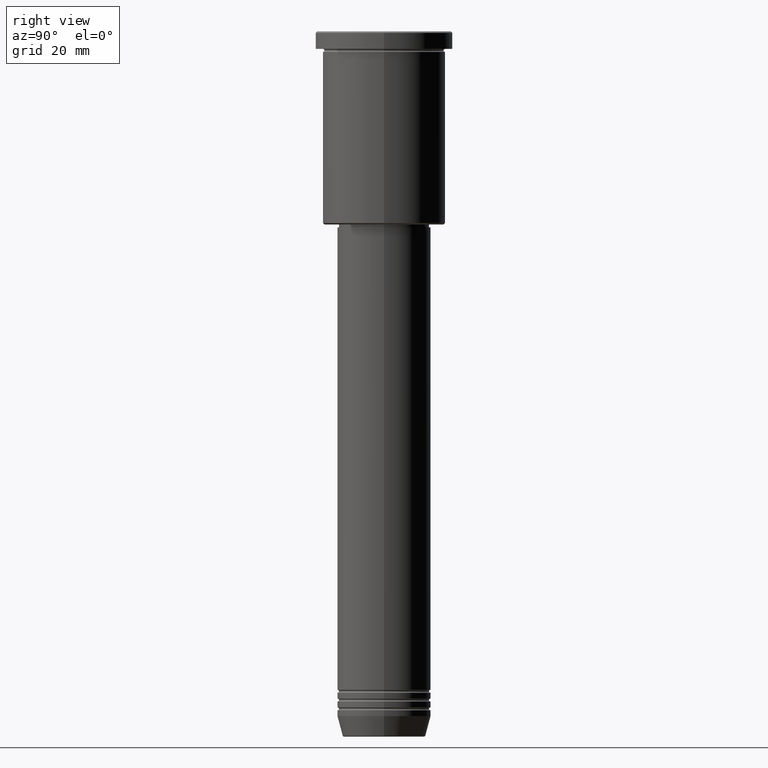
[diagram: clean part render]
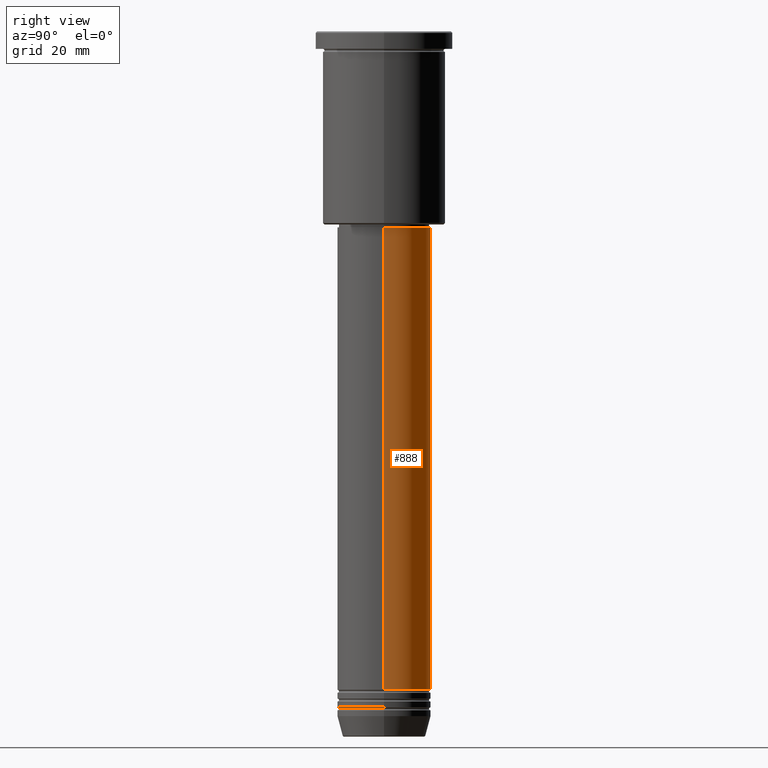
[diagram: same view with one face highlighted and labeled with its STEP entity id]
A machine part, right view. The second image highlights one B-rep face of the part: STEP entity #888.
In plain terms, the highlighted cylindrical surface (partial cylindrical patch) has radius 16 mm, axis along (-0, -0, 1).
Its self-contained STEP definition (entity closure, byte-faithful):
#3 = EDGE_CURVE ( 'NONE', #647, #993, #567, .T. ) ;
#12 = DIRECTION ( 'NONE',  ( -0.000000000000000000, -0.000000000000000000, 1.000000000000000000 ) ) ;
#17 = EDGE_CURVE ( 'NONE', #748, #993, #382, .T. ) ;
#32 = DIRECTION ( 'NONE',  ( 1.000000000000000000, 0.000000000000000000, 0.000000000000000000 ) ) ;
#38 = DIRECTION ( 'NONE',  ( -0.000000000000000000, -0.000000000000000000, 1.000000000000000000 ) ) ;
#58 = ORIENTED_EDGE ( 'NONE', *, *, #458, .F. ) ;
#67 = VECTOR ( 'NONE', #1146, 1000.000000000000000 ) ;
#95 = CARTESIAN_POINT ( 'NONE',  ( 0.000000000000000000, 0.000000000000000000, 0.000000000000000000 ) ) ;
#99 = FACE_OUTER_BOUND ( 'NONE', #1005, .T. ) ;
#201 = DIRECTION ( 'NONE',  ( -0.000000000000000000, -0.000000000000000000, 1.000000000000000000 ) ) ;
#228 = ORIENTED_EDGE ( 'NONE', *, *, #3, .T. ) ;
#230 = AXIS2_PLACEMENT_3D ( 'NONE', #932, #201, #32 ) ;
#279 = EDGE_CURVE ( 'NONE', #474, #647, #998, .T. ) ;
#296 = CARTESIAN_POINT ( 'NONE',  ( 16.00000000000000000, 0.000000000000000000, -67.00000000000000000 ) ) ;
#382 = CIRCLE ( 'NONE', #230, 16.00000000000000000 ) ;
#417 = CARTESIAN_POINT ( 'NONE',  ( -16.00000000000000000, 1.959434878635765131E-15, -67.00000000000000000 ) ) ;
#448 = DIRECTION ( 'NONE',  ( -0.000000000000000000, -0.000000000000000000, 1.000000000000000000 ) ) ;
#458 = EDGE_CURVE ( 'NONE', #474, #748, #1066, .T. ) ;
#473 = AXIS2_PLACEMENT_3D ( 'NONE', #540, #448, #813 ) ;
#474 = VERTEX_POINT ( 'NONE', #504 ) ;
#504 = CARTESIAN_POINT ( 'NONE',  ( 16.00000000000000000, 0.000000000000000000, -224.9999999999999716 ) ) ;
#529 = ORIENTED_EDGE ( 'NONE', *, *, #17, .F. ) ;
#540 = CARTESIAN_POINT ( 'NONE',  ( 0.000000000000000000, 0.000000000000000000, -224.9999999999999716 ) ) ;
#567 = LINE ( 'NONE', #1041, #857 ) ;
#647 = VERTEX_POINT ( 'NONE', #908 ) ;
#648 = DIRECTION ( 'NONE',  ( 1.000000000000000000, 0.000000000000000000, 0.000000000000000000 ) ) ;
#748 = VERTEX_POINT ( 'NONE', #296 ) ;
#791 = ORIENTED_EDGE ( 'NONE', *, *, #279, .T. ) ;
#813 = DIRECTION ( 'NONE',  ( 1.000000000000000000, 0.000000000000000000, 0.000000000000000000 ) ) ;
#820 = CYLINDRICAL_SURFACE ( 'NONE', #907, 16.00000000000000000 ) ;
#857 = VECTOR ( 'NONE', #38, 1000.000000000000000 ) ;
#888 = ADVANCED_FACE ( 'NONE', ( #99 ), #820, .T. ) ;
#907 = AXIS2_PLACEMENT_3D ( 'NONE', #95, #12, #648 ) ;
#908 = CARTESIAN_POINT ( 'NONE',  ( -16.00000000000000000, 1.959434878635765131E-15, -224.9999999999999716 ) ) ;
#932 = CARTESIAN_POINT ( 'NONE',  ( 0.000000000000000000, 0.000000000000000000, -67.00000000000000000 ) ) ;
#993 = VERTEX_POINT ( 'NONE', #417 ) ;
#998 = CIRCLE ( 'NONE', #473, 16.00000000000000000 ) ;
#1005 = EDGE_LOOP ( 'NONE', ( #791, #228, #529, #58 ) ) ;
#1041 = CARTESIAN_POINT ( 'NONE',  ( -16.00000000000000000, 1.959434878635765131E-15, 0.000000000000000000 ) ) ;
#1066 = LINE ( 'NONE', #1167, #67 ) ;
#1146 = DIRECTION ( 'NONE',  ( -0.000000000000000000, -0.000000000000000000, 1.000000000000000000 ) ) ;
#1167 = CARTESIAN_POINT ( 'NONE',  ( 16.00000000000000000, 0.000000000000000000, 0.000000000000000000 ) ) ;